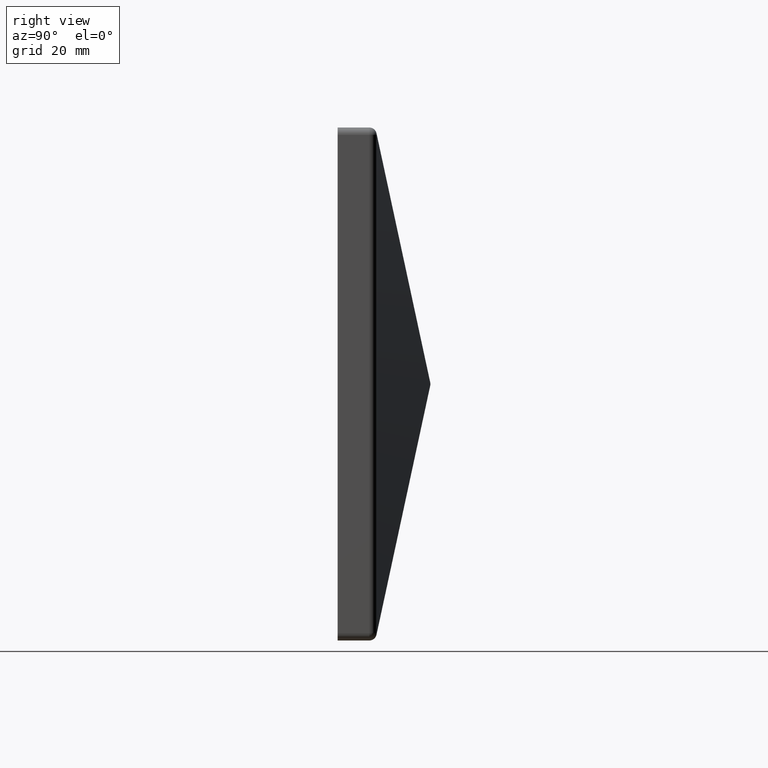
[diagram: clean part render]
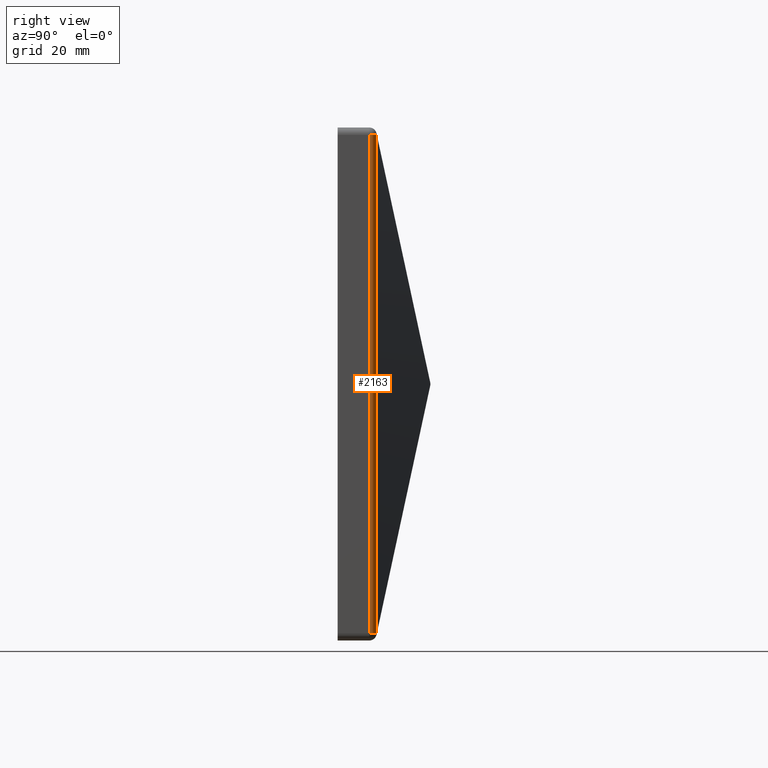
[diagram: same view with one face highlighted and labeled with its STEP entity id]
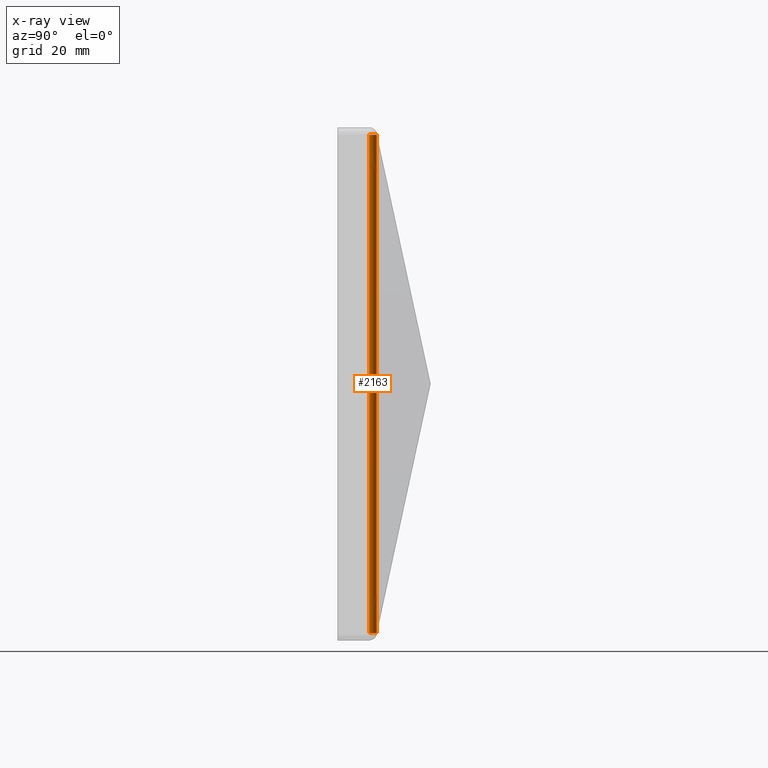
[diagram: x-ray of the same camera — body ghosted, the highlighted face saturated]
A machine part, right view. The second image highlights one B-rep face of the part: STEP entity #2163.
The next image is the same camera in x-ray: the body ghosted, the highlighted face saturated — about 0% of this face is hidden behind the body in this view.
In plain terms, the highlighted cylindrical surface (edge-blend (fillet) strip) has radius 1.5 mm, axis along (-0, -0, 1).
Its self-contained STEP definition (entity closure, byte-faithful):
#171 = ORIENTED_EDGE ( 'NONE', *, *, #4672, .T. ) ;
#632 = EDGE_CURVE ( 'NONE', #3208, #10350, #979, .T. ) ;
#979 = LINE ( 'NONE', #3878, #3006 ) ;
#1246 = DIRECTION ( 'NONE',  ( -0.0000000000000000000, -0.0000000000000000000, 1.000000000000000000 ) ) ;
#1397 = VERTEX_POINT ( 'NONE', #6609 ) ;
#1687 = VECTOR ( 'NONE', #3534, 1000.000000000000000 ) ;
#2163 = ADVANCED_FACE ( 'NONE', ( #5250 ), #7527, .T. ) ;
#2198 = CARTESIAN_POINT ( 'NONE',  ( 51.00000000000001400, 6.500000000000000000, 51.00000000000001400 ) ) ;
#2486 = CARTESIAN_POINT ( 'NONE',  ( 51.00000000000001400, 6.500000000000000000, -51.00000000000002800 ) ) ;
#2512 = CIRCLE ( 'NONE', #2671, 1.500000000000001300 ) ;
#2671 = AXIS2_PLACEMENT_3D ( 'NONE', #2486, #7583, #6670 ) ;
#3006 = VECTOR ( 'NONE', #1246, 1000.000000000000000 ) ;
#3064 = DIRECTION ( 'NONE',  ( 0.0000000000000000000, 0.0000000000000000000, -1.000000000000000000 ) ) ;
#3190 = LINE ( 'NONE', #10401, #1687 ) ;
#3208 = VERTEX_POINT ( 'NONE', #8258 ) ;
#3534 = DIRECTION ( 'NONE',  ( -0.0000000000000000000, -0.0000000000000000000, 1.000000000000000000 ) ) ;
#3878 = CARTESIAN_POINT ( 'NONE',  ( 52.50000000000002100, 6.500000000000000000, -52.49999999999999300 ) ) ;
#4672 = EDGE_CURVE ( 'NONE', #1397, #10350, #6556, .T. ) ;
#4800 = EDGE_CURVE ( 'NONE', #9937, #1397, #3190, .T. ) ;
#5209 = DIRECTION ( 'NONE',  ( 1.000000000000000000, 0.0000000000000000000, 0.0000000000000000000 ) ) ;
#5250 = FACE_OUTER_BOUND ( 'NONE', #6414, .T. ) ;
#6414 = EDGE_LOOP ( 'NONE', ( #11060, #171, #6935, #9897 ) ) ;
#6556 = CIRCLE ( 'NONE', #7429, 1.500000000000001300 ) ;
#6609 = CARTESIAN_POINT ( 'NONE',  ( 51.31625680837959200, 7.966281566123490700, 50.99999999999999300 ) ) ;
#6670 = DIRECTION ( 'NONE',  ( 1.000000000000000000, 0.0000000000000000000, 0.0000000000000000000 ) ) ;
#6819 = CARTESIAN_POINT ( 'NONE',  ( 51.31625680837959200, 7.966281566123490700, -51.00000000000002100 ) ) ;
#6883 = DIRECTION ( 'NONE',  ( -0.0000000000000000000, -0.0000000000000000000, 1.000000000000000000 ) ) ;
#6935 = ORIENTED_EDGE ( 'NONE', *, *, #632, .F. ) ;
#7381 = DIRECTION ( 'NONE',  ( 1.000000000000000000, -1.156482317317870300E-015, 0.0000000000000000000 ) ) ;
#7415 = CARTESIAN_POINT ( 'NONE',  ( 52.50000000000002100, 6.500000000000000000, 51.00000000000000700 ) ) ;
#7429 = AXIS2_PLACEMENT_3D ( 'NONE', #2198, #3064, #7381 ) ;
#7527 = CYLINDRICAL_SURFACE ( 'NONE', #9493, 1.500000000000001300 ) ;
#7583 = DIRECTION ( 'NONE',  ( -0.0000000000000000000, -0.0000000000000000000, 1.000000000000000000 ) ) ;
#8258 = CARTESIAN_POINT ( 'NONE',  ( 52.50000000000002100, 6.500000000000000000, -50.99999999999999300 ) ) ;
#8400 = CARTESIAN_POINT ( 'NONE',  ( 51.00000000000001400, 6.500000000000000000, -52.49999999999999300 ) ) ;
#9493 = AXIS2_PLACEMENT_3D ( 'NONE', #8400, #6883, #5209 ) ;
#9897 = ORIENTED_EDGE ( 'NONE', *, *, #10572, .T. ) ;
#9937 = VERTEX_POINT ( 'NONE', #6819 ) ;
#10350 = VERTEX_POINT ( 'NONE', #7415 ) ;
#10401 = CARTESIAN_POINT ( 'NONE',  ( 51.31625680837959200, 7.966281566123490700, -52.49999999999999300 ) ) ;
#10572 = EDGE_CURVE ( 'NONE', #3208, #9937, #2512, .T. ) ;
#11060 = ORIENTED_EDGE ( 'NONE', *, *, #4800, .T. ) ;